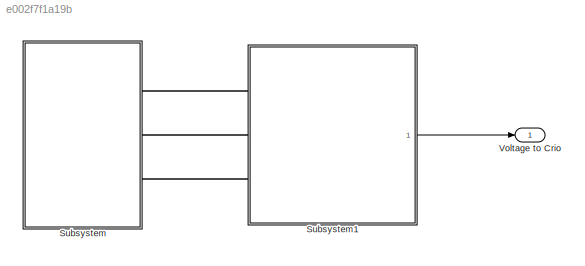
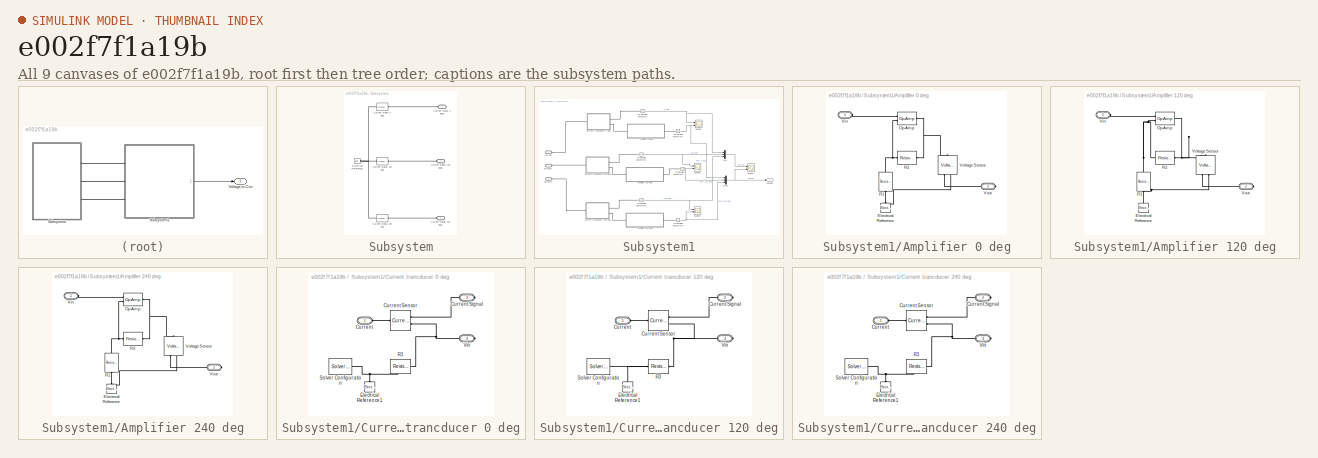
[diagram: thumbnail index - all 9 canvases of the model, root first then tree order]
MODEL slx_e002f7f1a19b
KIND model
CONFIG AbsTol = auto
CONFIG EnableMultiTasking = off
CONFIG FixedStep = auto
CONFIG MaxStep = auto
CONFIG MinStep = auto
CONFIG RelTol = 1e-3
CONFIG SampleTimeConstraint = Unconstrained
CONFIG SolverName = VariableStepAuto
CONFIG StartTime = 0.0
CONFIG StopTime = 1/60*2
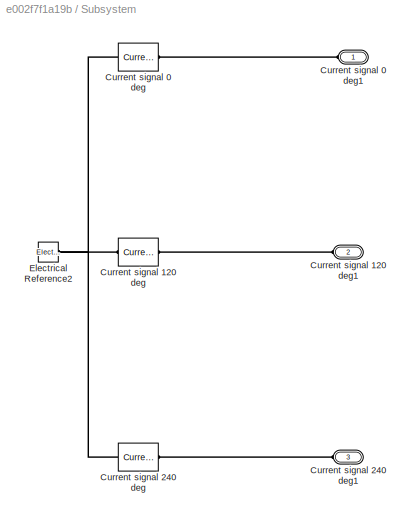
BLOCK [SubSystem] Subsystem
  NameLocation = top
  Ports = [0, 0, 0, 0, 0, 3]
  RequestExecContextInheritance = off
BLOCK [Reference] Subsystem/Current signal 0 deg  REF=ee_lib/Sources/Current Source
  Ports = [0, 0, 0, 0, 0, 1, 1]
  SourceBlock = ee_lib/Sources/Current Source
  SourceProductBaseCode = PS
  SourceType = Current Source
BLOCK [PMIOPort] Subsystem/Current signal 0 deg1
  Side = Left
BLOCK [Reference] Subsystem/Current signal 120 deg  REF=ee_lib/Sources/Current Source
  Ports = [0, 0, 0, 0, 0, 1, 1]
  SourceBlock = ee_lib/Sources/Current Source
  SourceProductBaseCode = PS
  SourceType = Current Source
BLOCK [PMIOPort] Subsystem/Current signal 120 deg1
  Port = 2
  Side = Left
BLOCK [Reference] Subsystem/Current signal 240 deg  REF=ee_lib/Sources/Current Source
  Ports = [0, 0, 0, 0, 0, 1, 1]
  SourceBlock = ee_lib/Sources/Current Source
  SourceProductBaseCode = PS
  SourceType = Current Source
BLOCK [PMIOPort] Subsystem/Current signal 240 deg1
  Port = 3
  Side = Left
BLOCK [Reference] Subsystem/Electrical Reference2  REF=fl_lib/Electrical/Electrical Elements/Electrical Reference
  Ports = [0, 0, 0, 0, 0, 1]
  SourceBlock = fl_lib/Electrical/Electrical Elements/Electrical Reference
  SourceProductBaseCode = SS
  SourceType = Electrical Reference
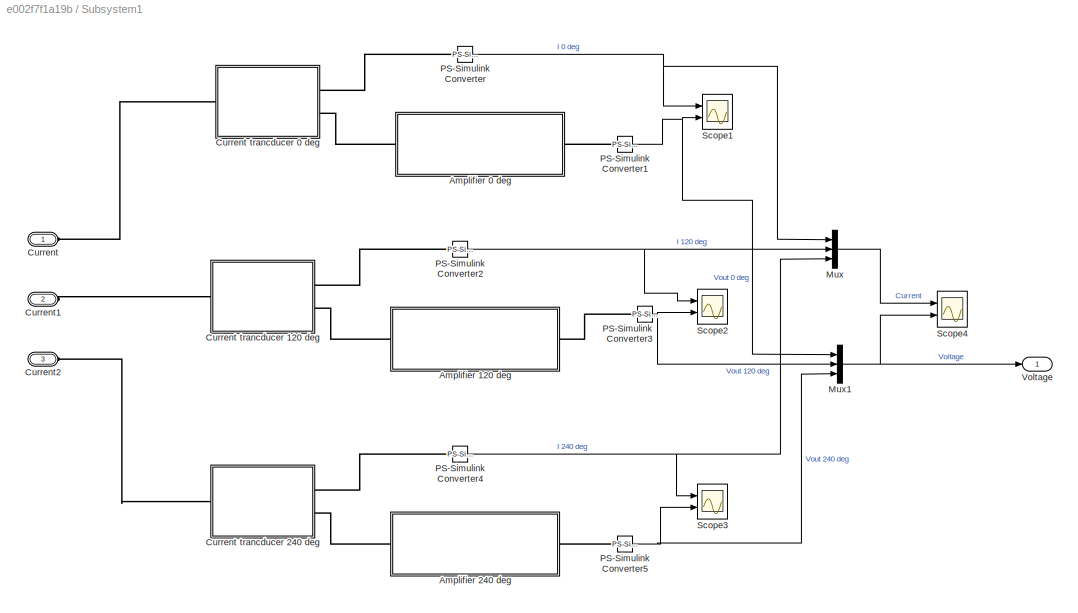
BLOCK [SubSystem] Subsystem1
  Ports = [0, 1, 0, 0, 0, 3]
  RequestExecContextInheritance = off
BLOCK [SubSystem] Subsystem1/Amplifier 0 deg
  Ports = [0, 0, 0, 0, 0, 1, 1]
  RequestExecContextInheritance = off
BLOCK [Reference] Subsystem1/Amplifier 0 deg/Electrical Reference  REF=fl_lib/Electrical/Electrical Elements/Electrical Reference
  NameLocation = right
  Ports = [0, 0, 0, 0, 0, 1]
  SourceBlock = fl_lib/Electrical/Electrical Elements/Electrical Reference
  SourceProductBaseCode = SS
  SourceType = Electrical Reference
BLOCK [Reference] Subsystem1/Amplifier 0 deg/Op-Amp  REF=fl_lib/Electrical/Electrical Elements/Op-Amp
  Ports = [0, 0, 0, 0, 0, 2, 1]
  SourceBlock = fl_lib/Electrical/Electrical Elements/Op-Amp
  SourceProductBaseCode = SS
  SourceType = Op-Amp
BLOCK [Reference] Subsystem1/Amplifier 0 deg/R1  REF=fl_lib/Electrical/Electrical Elements/Resistor
  NameLocation = left
  Ports = [0, 0, 0, 0, 0, 1, 1]
  SourceBlock = fl_lib/Electrical/Electrical Elements/Resistor
  SourceProductBaseCode = SS
  SourceType = Resistor
BLOCK [Reference] Subsystem1/Amplifier 0 deg/R2  REF=fl_lib/Electrical/Electrical Elements/Resistor
  Ports = [0, 0, 0, 0, 0, 1, 1]
  SourceBlock = fl_lib/Electrical/Electrical Elements/Resistor
  SourceProductBaseCode = SS
  SourceType = Resistor
BLOCK [PMIOPort] Subsystem1/Amplifier 0 deg/Vin
  Side = Left
BLOCK [Reference] Subsystem1/Amplifier 0 deg/Voltage Sensor  REF=fl_lib/Electrical/Electrical Sensors/Voltage Sensor
  NameLocation = left
  Ports = [0, 0, 0, 0, 0, 1, 2]
  SourceBlock = fl_lib/Electrical/Electrical Sensors/Voltage Sensor
  SourceProductBaseCode = SS
  SourceType = Voltage Sensor
BLOCK [PMIOPort] Subsystem1/Amplifier 0 deg/Vout
  Port = 2
  Side = Right
BLOCK [SubSystem] Subsystem1/Amplifier 120 deg
  Ports = [0, 0, 0, 0, 0, 1, 1]
  RequestExecContextInheritance = off
BLOCK [Reference] Subsystem1/Amplifier 120 deg/Electrical Reference  REF=fl_lib/Electrical/Electrical Elements/Electrical Reference
  NameLocation = right
  Ports = [0, 0, 0, 0, 0, 1]
  SourceBlock = fl_lib/Electrical/Electrical Elements/Electrical Reference
  SourceProductBaseCode = SS
  SourceType = Electrical Reference
BLOCK [Reference] Subsystem1/Amplifier 120 deg/Op-Amp  REF=fl_lib/Electrical/Electrical Elements/Op-Amp
  Ports = [0, 0, 0, 0, 0, 2, 1]
  SourceBlock = fl_lib/Electrical/Electrical Elements/Op-Amp
  SourceProductBaseCode = SS
  SourceType = Op-Amp
BLOCK [Reference] Subsystem1/Amplifier 120 deg/R1  REF=fl_lib/Electrical/Electrical Elements/Resistor
  NameLocation = left
  Ports = [0, 0, 0, 0, 0, 1, 1]
  SourceBlock = fl_lib/Electrical/Electrical Elements/Resistor
  SourceProductBaseCode = SS
  SourceType = Resistor
BLOCK [Reference] Subsystem1/Amplifier 120 deg/R2  REF=fl_lib/Electrical/Electrical Elements/Resistor
  Ports = [0, 0, 0, 0, 0, 1, 1]
  SourceBlock = fl_lib/Electrical/Electrical Elements/Resistor
  SourceProductBaseCode = SS
  SourceType = Resistor
BLOCK [PMIOPort] Subsystem1/Amplifier 120 deg/Vin
  Side = Left
BLOCK [Reference] Subsystem1/Amplifier 120 deg/Voltage Sensor  REF=fl_lib/Electrical/Electrical Sensors/Voltage Sensor
  NameLocation = left
  Ports = [0, 0, 0, 0, 0, 1, 2]
  SourceBlock = fl_lib/Electrical/Electrical Sensors/Voltage Sensor
  SourceProductBaseCode = SS
  SourceType = Voltage Sensor
BLOCK [PMIOPort] Subsystem1/Amplifier 120 deg/Vout
  Port = 2
  Side = Right
BLOCK [SubSystem] Subsystem1/Amplifier 240 deg
  Ports = [0, 0, 0, 0, 0, 1, 1]
  RequestExecContextInheritance = off
BLOCK [Reference] Subsystem1/Amplifier 240 deg/Electrical Reference  REF=fl_lib/Electrical/Electrical Elements/Electrical Reference
  NameLocation = right
  Ports = [0, 0, 0, 0, 0, 1]
  SourceBlock = fl_lib/Electrical/Electrical Elements/Electrical Reference
  SourceProductBaseCode = SS
  SourceType = Electrical Reference
BLOCK [Reference] Subsystem1/Amplifier 240 deg/Op-Amp  REF=fl_lib/Electrical/Electrical Elements/Op-Amp
  Ports = [0, 0, 0, 0, 0, 2, 1]
  SourceBlock = fl_lib/Electrical/Electrical Elements/Op-Amp
  SourceProductBaseCode = SS
  SourceType = Op-Amp
BLOCK [Reference] Subsystem1/Amplifier 240 deg/R1  REF=fl_lib/Electrical/Electrical Elements/Resistor
  NameLocation = left
  Ports = [0, 0, 0, 0, 0, 1, 1]
  SourceBlock = fl_lib/Electrical/Electrical Elements/Resistor
  SourceProductBaseCode = SS
  SourceType = Resistor
BLOCK [Reference] Subsystem1/Amplifier 240 deg/R2  REF=fl_lib/Electrical/Electrical Elements/Resistor
  Ports = [0, 0, 0, 0, 0, 1, 1]
  SourceBlock = fl_lib/Electrical/Electrical Elements/Resistor
  SourceProductBaseCode = SS
  SourceType = Resistor
BLOCK [PMIOPort] Subsystem1/Amplifier 240 deg/Vin
  Side = Left
BLOCK [Reference] Subsystem1/Amplifier 240 deg/Voltage Sensor  REF=fl_lib/Electrical/Electrical Sensors/Voltage Sensor
  NameLocation = left
  Ports = [0, 0, 0, 0, 0, 1, 2]
  SourceBlock = fl_lib/Electrical/Electrical Sensors/Voltage Sensor
  SourceProductBaseCode = SS
  SourceType = Voltage Sensor
BLOCK [PMIOPort] Subsystem1/Amplifier 240 deg/Vout
  Port = 2
  Side = Right
BLOCK [PMIOPort] Subsystem1/Current
  Side = Left
BLOCK [SubSystem] Subsystem1/Current trancducer 0 deg
  Ports = [0, 0, 0, 0, 0, 1, 2]
  RequestExecContextInheritance = off
BLOCK [PMIOPort] Subsystem1/Current trancducer 0 deg/Current
  Side = Left
BLOCK [Reference] Subsystem1/Current trancducer 0 deg/Current Sensor  REF=fl_lib/Electrical/Electrical Sensors/Current Sensor
  Ports = [0, 0, 0, 0, 0, 1, 2]
  SourceBlock = fl_lib/Electrical/Electrical Sensors/Current Sensor
  SourceProductBaseCode = SS
  SourceType = Current Sensor
BLOCK [PMIOPort] Subsystem1/Current trancducer 0 deg/Current Signal
  Port = 2
  Side = Right
BLOCK [Reference] Subsystem1/Current trancducer 0 deg/Electrical Reference1  REF=fl_lib/Electrical/Electrical Elements/Electrical Reference
  NameLocation = right
  Ports = [0, 0, 0, 0, 0, 1]
  SourceBlock = fl_lib/Electrical/Electrical Elements/Electrical Reference
  SourceProductBaseCode = SS
  SourceType = Electrical Reference
BLOCK [Reference] Subsystem1/Current trancducer 0 deg/R3  REF=fl_lib/Electrical/Electrical Elements/Resistor
  NameLocation = top
  Ports = [0, 0, 0, 0, 0, 1, 1]
  SourceBlock = fl_lib/Electrical/Electrical Elements/Resistor
  SourceProductBaseCode = SS
  SourceType = Resistor
BLOCK [Reference] Subsystem1/Current trancducer 0 deg/Solver Configuration  REF=nesl_utility/Solver
Configuration
  Ports = [0, 0, 0, 0, 0, 0, 1]
  SourceBlock = nesl_utility/Solver\nConfiguration
  SourceProductBaseCode = SS
  SourceType = Solver\nConfiguration
BLOCK [PMIOPort] Subsystem1/Current trancducer 0 deg/Vin
  Port = 3
  Side = Right
BLOCK [SubSystem] Subsystem1/Current trancducer 120 deg
  Ports = [0, 0, 0, 0, 0, 1, 2]
  RequestExecContextInheritance = off
BLOCK [PMIOPort] Subsystem1/Current trancducer 120 deg/Current
  Side = Left
BLOCK [Reference] Subsystem1/Current trancducer 120 deg/Current Sensor  REF=fl_lib/Electrical/Electrical Sensors/Current Sensor
  Ports = [0, 0, 0, 0, 0, 1, 2]
  SourceBlock = fl_lib/Electrical/Electrical Sensors/Current Sensor
  SourceProductBaseCode = SS
  SourceType = Current Sensor
BLOCK [PMIOPort] Subsystem1/Current trancducer 120 deg/Current Signal
  Port = 2
  Side = Right
BLOCK [Reference] Subsystem1/Current trancducer 120 deg/Electrical Reference1  REF=fl_lib/Electrical/Electrical Elements/Electrical Reference
  NameLocation = right
  Ports = [0, 0, 0, 0, 0, 1]
  SourceBlock = fl_lib/Electrical/Electrical Elements/Electrical Reference
  SourceProductBaseCode = SS
  SourceType = Electrical Reference
BLOCK [Reference] Subsystem1/Current trancducer 120 deg/R3  REF=fl_lib/Electrical/Electrical Elements/Resistor
  NameLocation = top
  Ports = [0, 0, 0, 0, 0, 1, 1]
  SourceBlock = fl_lib/Electrical/Electrical Elements/Resistor
  SourceProductBaseCode = SS
  SourceType = Resistor
BLOCK [Reference] Subsystem1/Current trancducer 120 deg/Solver Configuration  REF=nesl_utility/Solver
Configuration
  Ports = [0, 0, 0, 0, 0, 0, 1]
  SourceBlock = nesl_utility/Solver\nConfiguration
  SourceProductBaseCode = SS
  SourceType = Solver\nConfiguration
BLOCK [PMIOPort] Subsystem1/Current trancducer 120 deg/Vin
  Port = 3
  Side = Right
BLOCK [SubSystem] Subsystem1/Current trancducer 240 deg
  Ports = [0, 0, 0, 0, 0, 1, 2]
  RequestExecContextInheritance = off
BLOCK [PMIOPort] Subsystem1/Current trancducer 240 deg/Current
  Side = Left
BLOCK [Reference] Subsystem1/Current trancducer 240 deg/Current Sensor  REF=fl_lib/Electrical/Electrical Sensors/Current Sensor
  Ports = [0, 0, 0, 0, 0, 1, 2]
  SourceBlock = fl_lib/Electrical/Electrical Sensors/Current Sensor
  SourceProductBaseCode = SS
  SourceType = Current Sensor
BLOCK [PMIOPort] Subsystem1/Current trancducer 240 deg/Current Signal
  Port = 2
  Side = Right
BLOCK [Reference] Subsystem1/Current trancducer 240 deg/Electrical Reference1  REF=fl_lib/Electrical/Electrical Elements/Electrical Reference
  NameLocation = right
  Ports = [0, 0, 0, 0, 0, 1]
  SourceBlock = fl_lib/Electrical/Electrical Elements/Electrical Reference
  SourceProductBaseCode = SS
  SourceType = Electrical Reference
BLOCK [Reference] Subsystem1/Current trancducer 240 deg/R3  REF=fl_lib/Electrical/Electrical Elements/Resistor
  NameLocation = top
  Ports = [0, 0, 0, 0, 0, 1, 1]
  SourceBlock = fl_lib/Electrical/Electrical Elements/Resistor
  SourceProductBaseCode = SS
  SourceType = Resistor
BLOCK [Reference] Subsystem1/Current trancducer 240 deg/Solver Configuration  REF=nesl_utility/Solver
Configuration
  Ports = [0, 0, 0, 0, 0, 0, 1]
  SourceBlock = nesl_utility/Solver\nConfiguration
  SourceProductBaseCode = SS
  SourceType = Solver\nConfiguration
BLOCK [PMIOPort] Subsystem1/Current trancducer 240 deg/Vin
  Port = 3
  Side = Right
BLOCK [PMIOPort] Subsystem1/Current1
  Port = 2
  Side = Left
BLOCK [PMIOPort] Subsystem1/Current2
  Port = 3
  Side = Left
BLOCK [Mux] Subsystem1/Mux
  DisplayOption = bar
  Inputs = 3
  Ports = [3, 1]
BLOCK [Mux] Subsystem1/Mux1
  DisplayOption = bar
  Inputs = 3
  Ports = [3, 1]
BLOCK [Reference] Subsystem1/PS-Simulink Converter  REF=nesl_utility/PS-Simulink
Converter
  Ports = [0, 1, 0, 0, 0, 1]
  SourceBlock = nesl_utility/PS-Simulink\nConverter
  SourceProductBaseCode = SS
  SourceType = PS-Simulink\nConverter
BLOCK [Reference] Subsystem1/PS-Simulink Converter1  REF=nesl_utility/PS-Simulink
Converter
  Ports = [0, 1, 0, 0, 0, 1]
  SourceBlock = nesl_utility/PS-Simulink\nConverter
  SourceProductBaseCode = SS
  SourceType = PS-Simulink\nConverter
BLOCK [Reference] Subsystem1/PS-Simulink Converter2  REF=nesl_utility/PS-Simulink
Converter
  Ports = [0, 1, 0, 0, 0, 1]
  SourceBlock = nesl_utility/PS-Simulink\nConverter
  SourceProductBaseCode = SS
  SourceType = PS-Simulink\nConverter
BLOCK [Reference] Subsystem1/PS-Simulink Converter3  REF=nesl_utility/PS-Simulink
Converter
  Ports = [0, 1, 0, 0, 0, 1]
  SourceBlock = nesl_utility/PS-Simulink\nConverter
  SourceProductBaseCode = SS
  SourceType = PS-Simulink\nConverter
BLOCK [Reference] Subsystem1/PS-Simulink Converter4  REF=nesl_utility/PS-Simulink
Converter
  Ports = [0, 1, 0, 0, 0, 1]
  SourceBlock = nesl_utility/PS-Simulink\nConverter
  SourceProductBaseCode = SS
  SourceType = PS-Simulink\nConverter
BLOCK [Reference] Subsystem1/PS-Simulink Converter5  REF=nesl_utility/PS-Simulink
Converter
  Ports = [0, 1, 0, 0, 0, 1]
  SourceBlock = nesl_utility/PS-Simulink\nConverter
  SourceProductBaseCode = SS
  SourceType = PS-Simulink\nConverter
BLOCK [Scope] Subsystem1/Scope1
  Floating = off
  NumInputPorts = 2
  Ports = [2]
  ScopeSpecificationString = Simulink.scopes.TimeScopeBlockCfg('CurrentConfiguration', extmgr.ConfigurationSet(extmgr.Configuration('Core','General UI',true),extmgr.Configuration('Core','Source UI',true),extmgr.Configuration('Sources','WiredSimulink',true,'DataLoggingVariableName','ScopeData1'),extmgr.Configuration('Visuals','Time Domain',true,'SerializedDisplays',{struct('MinYLimReal','-0.24989','MaxYLimReal','0.24986','YLab...<+2095ch>
BLOCK [Scope] Subsystem1/Scope2
  Floating = off
  NumInputPorts = 2
  Ports = [2]
  ScopeSpecificationString = Simulink.scopes.TimeScopeBlockCfg('CurrentConfiguration', extmgr.ConfigurationSet(extmgr.Configuration('Core','General UI',true),extmgr.Configuration('Core','Source UI',true),extmgr.Configuration('Sources','WiredSimulink',true,'DataLoggingVariableName','ScopeData1'),extmgr.Configuration('Visuals','Time Domain',true,'SerializedDisplays',{struct('MinYLimReal','-0.24989','MaxYLimReal','0.24986','YLab...<+2095ch>
BLOCK [Scope] Subsystem1/Scope3
  Floating = off
  NumInputPorts = 2
  Ports = [2]
  ScopeSpecificationString = Simulink.scopes.TimeScopeBlockCfg('CurrentConfiguration', extmgr.ConfigurationSet(extmgr.Configuration('Core','General UI',true),extmgr.Configuration('Core','Source UI',true),extmgr.Configuration('Sources','WiredSimulink',true,'DataLoggingVariableName','ScopeData2'),extmgr.Configuration('Visuals','Time Domain',true,'SerializedDisplays',{struct('MinYLimReal','-0.24989','MaxYLimReal','0.24986','YLab...<+2095ch>
BLOCK [Scope] Subsystem1/Scope4
  Floating = off
  NumInputPorts = 2
  Ports = [2]
  ScopeSpecificationString = Simulink.scopes.TimeScopeBlockCfg('CurrentConfiguration', extmgr.ConfigurationSet(extmgr.Configuration('Core','General UI',true),extmgr.Configuration('Core','Source UI',true),extmgr.Configuration('Sources','WiredSimulink',true,'DataLoggingVariableName','ScopeData3'),extmgr.Configuration('Visuals','Time Domain',true,'SerializedDisplays',{struct('MinYLimReal','-0.24997','MaxYLimReal','0.24999','YLab...<+2324ch>
BLOCK [Outport] Subsystem1/Voltage
BLOCK [Outport] Voltage to Crio
NET Subsystem1/Mux1:1 -> Subsystem1/Scope4:2, Subsystem1/Voltage:1
LINE Subsystem1/Mux:1 -> Subsystem1/Scope4:1
NET Subsystem1/PS-Simulink Converter1:1 -> Subsystem1/Mux1:1, Subsystem1/Scope1:2
NET Subsystem1/PS-Simulink Converter2:1 -> Subsystem1/Mux:2, Subsystem1/Scope2:1
NET Subsystem1/PS-Simulink Converter3:1 -> Subsystem1/Mux1:2, Subsystem1/Scope2:2
NET Subsystem1/PS-Simulink Converter4:1 -> Subsystem1/Mux:3, Subsystem1/Scope3:1
NET Subsystem1/PS-Simulink Converter5:1 -> Subsystem1/Mux1:3, Subsystem1/Scope3:2
NET Subsystem1/PS-Simulink Converter:1 -> Subsystem1/Mux:1, Subsystem1/Scope1:1
LINE Subsystem1:1 -> Voltage to Crio:1
PLINE Subsystem/Current signal 0 deg1:RConn1 -- Subsystem/Current signal 0 deg:LConn1
PNET net1: Subsystem/Current signal 0 deg:RConn1 -- Subsystem/Current signal 120 deg:RConn1 -- Subsystem/Current signal 240 deg:RConn1 -- Subsystem/Electrical Reference2:LConn1
PLINE Subsystem/Current signal 120 deg1:RConn1 -- Subsystem/Current signal 120 deg:LConn1
PLINE Subsystem/Current signal 240 deg1:RConn1 -- Subsystem/Current signal 240 deg:LConn1
PNET net2: Subsystem1/Amplifier 0 deg/Electrical Reference:LConn1 -- Subsystem1/Amplifier 0 deg/R1:RConn1 -- Subsystem1/Amplifier 0 deg/Voltage Sensor:RConn2
PLINE Subsystem1/Amplifier 0 deg/Op-Amp:LConn1 -- Subsystem1/Amplifier 0 deg/Vin:RConn1
PNET net3: Subsystem1/Amplifier 0 deg/Op-Amp:LConn2 -- Subsystem1/Amplifier 0 deg/R1:LConn1 -- Subsystem1/Amplifier 0 deg/R2:LConn1
PNET net4: Subsystem1/Amplifier 0 deg/Op-Amp:RConn1 -- Subsystem1/Amplifier 0 deg/R2:RConn1 -- Subsystem1/Amplifier 0 deg/Voltage Sensor:LConn1
PLINE Subsystem1/Amplifier 0 deg/Voltage Sensor:RConn1 -- Subsystem1/Amplifier 0 deg/Vout:RConn1
PLINE Subsystem1/Amplifier 0 deg:LConn1 -- Subsystem1/Current trancducer 0 deg:RConn2
PLINE Subsystem1/Amplifier 0 deg:RConn1 -- Subsystem1/PS-Simulink Converter1:LConn1
PNET net5: Subsystem1/Amplifier 120 deg/Electrical Reference:LConn1 -- Subsystem1/Amplifier 120 deg/R1:RConn1 -- Subsystem1/Amplifier 120 deg/Voltage Sensor:RConn2
PLINE Subsystem1/Amplifier 120 deg/Op-Amp:LConn1 -- Subsystem1/Amplifier 120 deg/Vin:RConn1
PNET net6: Subsystem1/Amplifier 120 deg/Op-Amp:LConn2 -- Subsystem1/Amplifier 120 deg/R1:LConn1 -- Subsystem1/Amplifier 120 deg/R2:LConn1
PNET net7: Subsystem1/Amplifier 120 deg/Op-Amp:RConn1 -- Subsystem1/Amplifier 120 deg/R2:RConn1 -- Subsystem1/Amplifier 120 deg/Voltage Sensor:LConn1
PLINE Subsystem1/Amplifier 120 deg/Voltage Sensor:RConn1 -- Subsystem1/Amplifier 120 deg/Vout:RConn1
PLINE Subsystem1/Amplifier 120 deg:LConn1 -- Subsystem1/Current trancducer 120 deg:RConn2
PLINE Subsystem1/Amplifier 120 deg:RConn1 -- Subsystem1/PS-Simulink Converter3:LConn1
PNET net8: Subsystem1/Amplifier 240 deg/Electrical Reference:LConn1 -- Subsystem1/Amplifier 240 deg/R1:RConn1 -- Subsystem1/Amplifier 240 deg/Voltage Sensor:RConn2
PLINE Subsystem1/Amplifier 240 deg/Op-Amp:LConn1 -- Subsystem1/Amplifier 240 deg/Vin:RConn1
PNET net9: Subsystem1/Amplifier 240 deg/Op-Amp:LConn2 -- Subsystem1/Amplifier 240 deg/R1:LConn1 -- Subsystem1/Amplifier 240 deg/R2:LConn1
PNET net10: Subsystem1/Amplifier 240 deg/Op-Amp:RConn1 -- Subsystem1/Amplifier 240 deg/R2:RConn1 -- Subsystem1/Amplifier 240 deg/Voltage Sensor:LConn1
PLINE Subsystem1/Amplifier 240 deg/Voltage Sensor:RConn1 -- Subsystem1/Amplifier 240 deg/Vout:RConn1
PLINE Subsystem1/Amplifier 240 deg:LConn1 -- Subsystem1/Current trancducer 240 deg:RConn2
PLINE Subsystem1/Amplifier 240 deg:RConn1 -- Subsystem1/PS-Simulink Converter5:LConn1
PLINE Subsystem1/Current trancducer 0 deg/Current Sensor:LConn1 -- Subsystem1/Current trancducer 0 deg/Current:RConn1
PLINE Subsystem1/Current trancducer 0 deg/Current Sensor:RConn1 -- Subsystem1/Current trancducer 0 deg/Current Signal:RConn1
PNET net11: Subsystem1/Current trancducer 0 deg/Current Sensor:RConn2 -- Subsystem1/Current trancducer 0 deg/R3:LConn1 -- Subsystem1/Current trancducer 0 deg/Vin:RConn1
PNET net12: Subsystem1/Current trancducer 0 deg/Electrical Reference1:LConn1 -- Subsystem1/Current trancducer 0 deg/R3:RConn1 -- Subsystem1/Current trancducer 0 deg/Solver Configuration:RConn1
PLINE Subsystem1/Current trancducer 0 deg:LConn1 -- Subsystem1/Current:RConn1
PLINE Subsystem1/Current trancducer 0 deg:RConn1 -- Subsystem1/PS-Simulink Converter:LConn1
PLINE Subsystem1/Current trancducer 120 deg/Current Sensor:LConn1 -- Subsystem1/Current trancducer 120 deg/Current:RConn1
PLINE Subsystem1/Current trancducer 120 deg/Current Sensor:RConn1 -- Subsystem1/Current trancducer 120 deg/Current Signal:RConn1
PNET net13: Subsystem1/Current trancducer 120 deg/Current Sensor:RConn2 -- Subsystem1/Current trancducer 120 deg/R3:LConn1 -- Subsystem1/Current trancducer 120 deg/Vin:RConn1
PNET net14: Subsystem1/Current trancducer 120 deg/Electrical Reference1:LConn1 -- Subsystem1/Current trancducer 120 deg/R3:RConn1 -- Subsystem1/Current trancducer 120 deg/Solver Configuration:RConn1
PLINE Subsystem1/Current trancducer 120 deg:LConn1 -- Subsystem1/Current1:RConn1
PLINE Subsystem1/Current trancducer 120 deg:RConn1 -- Subsystem1/PS-Simulink Converter2:LConn1
PLINE Subsystem1/Current trancducer 240 deg/Current Sensor:LConn1 -- Subsystem1/Current trancducer 240 deg/Current:RConn1
PLINE Subsystem1/Current trancducer 240 deg/Current Sensor:RConn1 -- Subsystem1/Current trancducer 240 deg/Current Signal:RConn1
PNET net15: Subsystem1/Current trancducer 240 deg/Current Sensor:RConn2 -- Subsystem1/Current trancducer 240 deg/R3:LConn1 -- Subsystem1/Current trancducer 240 deg/Vin:RConn1
PNET net16: Subsystem1/Current trancducer 240 deg/Electrical Reference1:LConn1 -- Subsystem1/Current trancducer 240 deg/R3:RConn1 -- Subsystem1/Current trancducer 240 deg/Solver Configuration:RConn1
PLINE Subsystem1/Current trancducer 240 deg:LConn1 -- Subsystem1/Current2:RConn1
PLINE Subsystem1/Current trancducer 240 deg:RConn1 -- Subsystem1/PS-Simulink Converter4:LConn1
PLINE Subsystem1:LConn1 -- Subsystem:LConn1
PLINE Subsystem1:LConn2 -- Subsystem:LConn2
PLINE Subsystem1:LConn3 -- Subsystem:LConn3
note: NET lines group one-source signal fan-out (src -> all destinations, sorted); 1:1 wires keep LINE; PNET lines group multi-terminal physical nets as a canonical sorted terminal list (undirected conserving connections); 2-terminal nets keep the pairwise PLINE form
